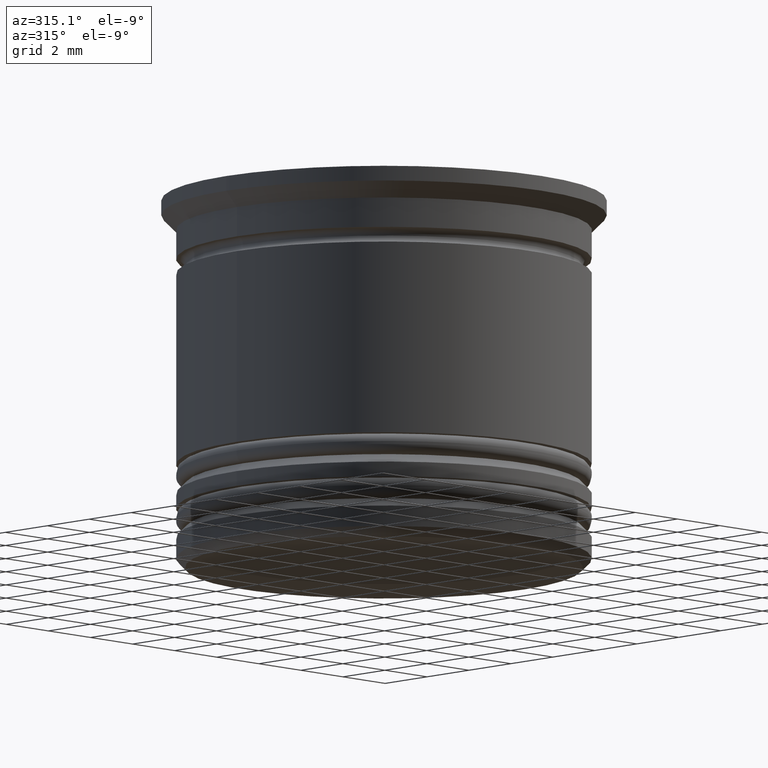
[diagram: clean part render]
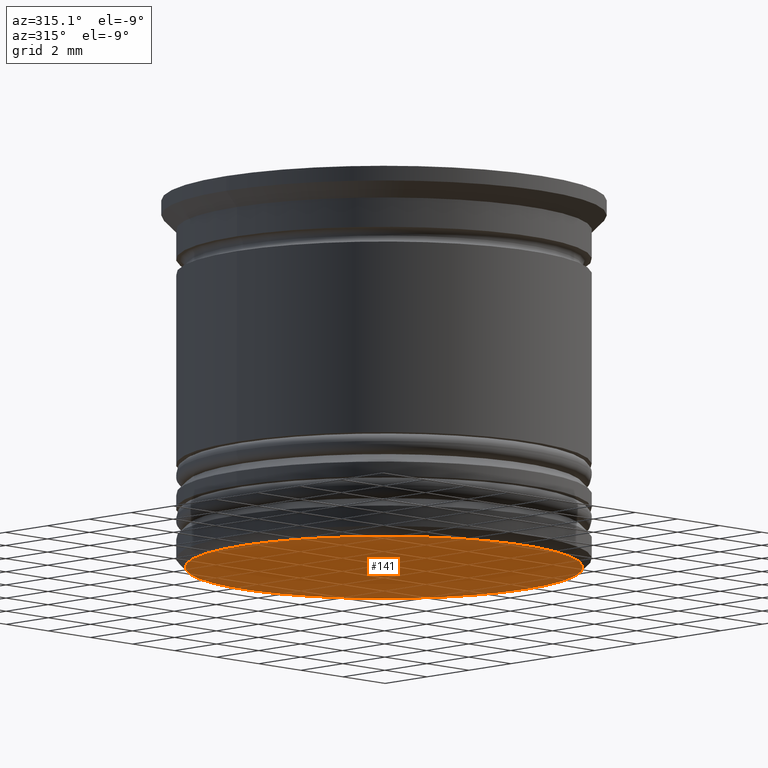
[diagram: same view with one face highlighted and labeled with its STEP entity id]
A machine part, auxiliary view. The second image highlights one B-rep face of the part: STEP entity #141.
In plain terms, the highlighted planar face has unit normal (0, 0, -1).
Its self-contained STEP definition (entity closure, byte-faithful):
#42 = PLANE ( 'NONE',  #382 ) ;
#78 = VERTEX_POINT ( 'NONE', #344 ) ;
#141 = ADVANCED_FACE ( 'NONE', ( #1733 ), #42, .T. ) ;
#344 = CARTESIAN_POINT ( 'NONE',  ( 6.699999999999996625, 0.000000000000000000, -12.50000000000000000 ) ) ;
#382 = AXIS2_PLACEMENT_3D ( 'NONE', #1884, #501, #506 ) ;
#488 = AXIS2_PLACEMENT_3D ( 'NONE', #1368, #1358, #567 ) ;
#501 = DIRECTION ( 'NONE',  ( 0.000000000000000000, 0.000000000000000000, -1.000000000000000000 ) ) ;
#503 = ORIENTED_EDGE ( 'NONE', *, *, #1486, .T. ) ;
#506 = DIRECTION ( 'NONE',  ( -1.000000000000000000, 0.000000000000000000, -0.000000000000000000 ) ) ;
#567 = DIRECTION ( 'NONE',  ( -1.000000000000000000, 0.000000000000000000, 0.000000000000000000 ) ) ;
#617 = CARTESIAN_POINT ( 'NONE',  ( 0.000000000000000000, 0.000000000000000000, -12.50000000000000000 ) ) ;
#976 = EDGE_CURVE ( 'NONE', #78, #1663, #1970, .T. ) ;
#1084 = EDGE_LOOP ( 'NONE', ( #1134, #503 ) ) ;
#1134 = ORIENTED_EDGE ( 'NONE', *, *, #976, .T. ) ;
#1221 = CARTESIAN_POINT ( 'NONE',  ( -6.699999999999996625, 8.388830574159365932E-16, -12.50000000000000000 ) ) ;
#1358 = DIRECTION ( 'NONE',  ( 0.000000000000000000, 0.000000000000000000, -1.000000000000000000 ) ) ;
#1368 = CARTESIAN_POINT ( 'NONE',  ( 0.000000000000000000, 0.000000000000000000, -12.50000000000000000 ) ) ;
#1486 = EDGE_CURVE ( 'NONE', #1663, #78, #1495, .T. ) ;
#1495 = CIRCLE ( 'NONE', #488, 6.699999999999996625 ) ;
#1663 = VERTEX_POINT ( 'NONE', #1221 ) ;
#1681 = AXIS2_PLACEMENT_3D ( 'NONE', #617, #1984, #1851 ) ;
#1733 = FACE_OUTER_BOUND ( 'NONE', #1084, .T. ) ;
#1851 = DIRECTION ( 'NONE',  ( -1.000000000000000000, 0.000000000000000000, 0.000000000000000000 ) ) ;
#1884 = CARTESIAN_POINT ( 'NONE',  ( 0.000000000000000000, 7.000000000000000888, -12.50000000000000000 ) ) ;
#1970 = CIRCLE ( 'NONE', #1681, 6.699999999999996625 ) ;
#1984 = DIRECTION ( 'NONE',  ( 0.000000000000000000, 0.000000000000000000, -1.000000000000000000 ) ) ;